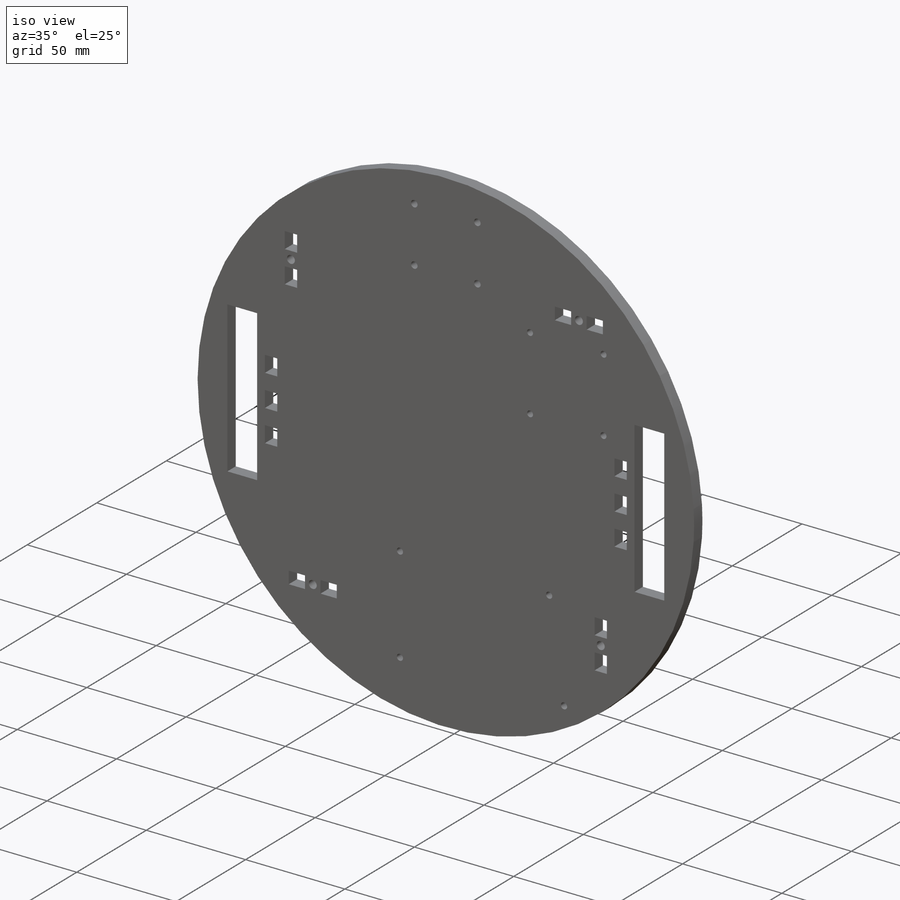
[diagram: iso view]
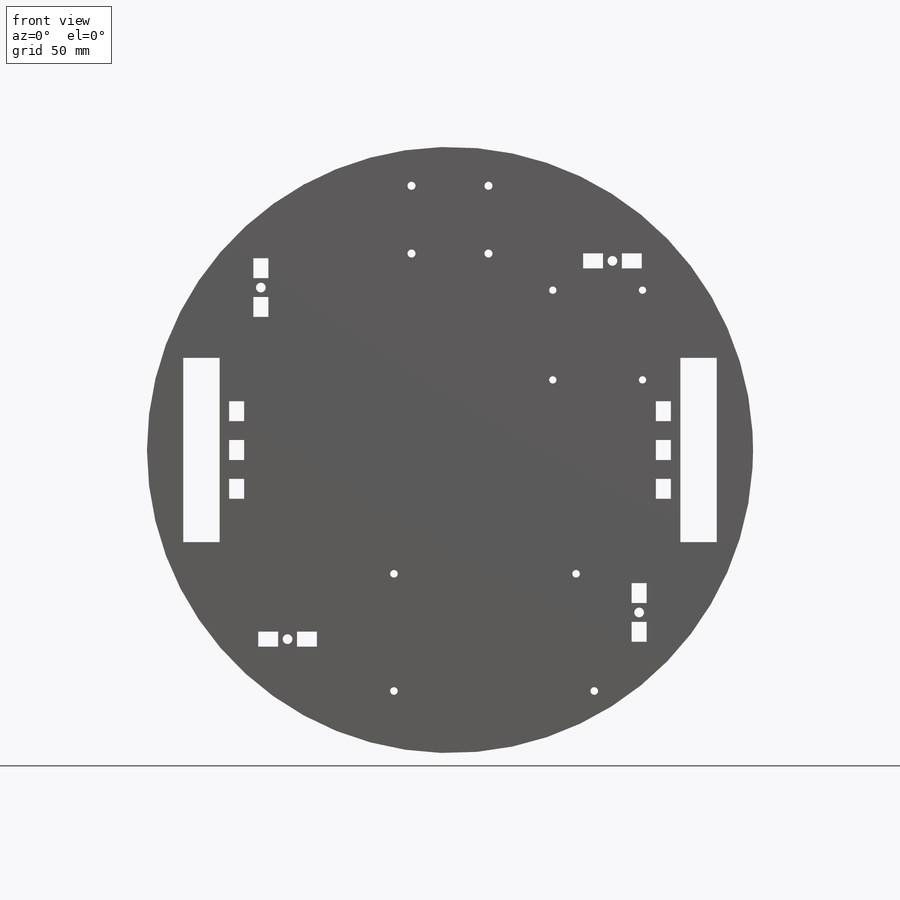
[diagram: front view]
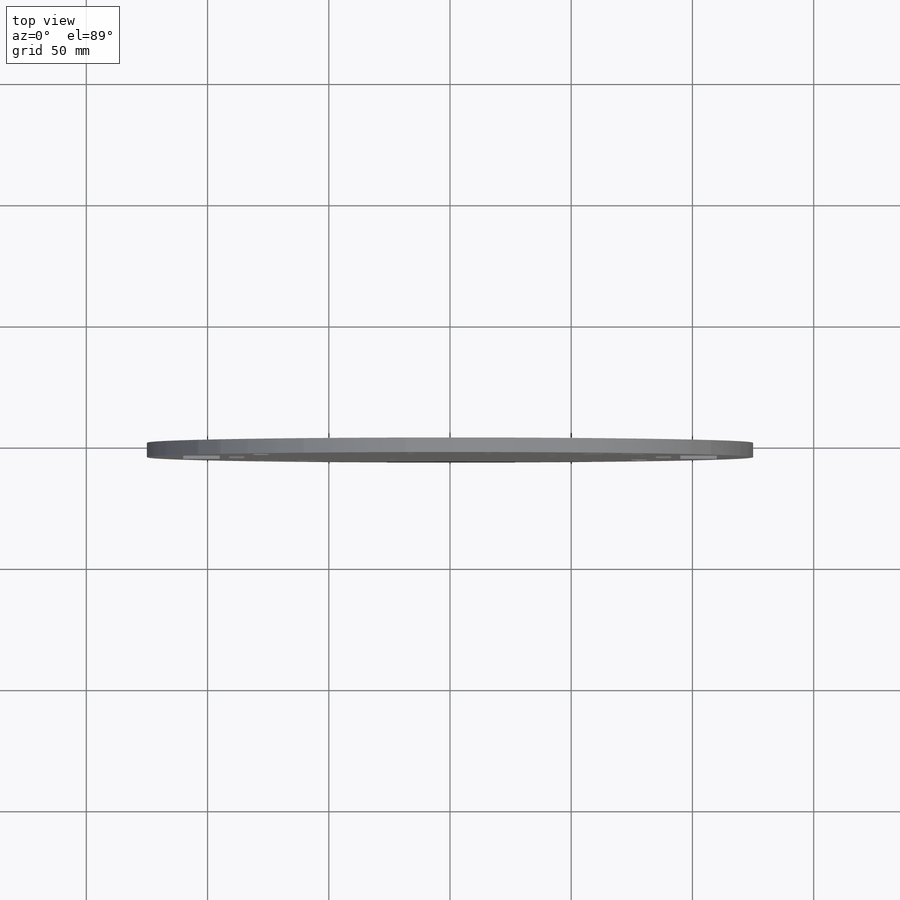
[diagram: top view]
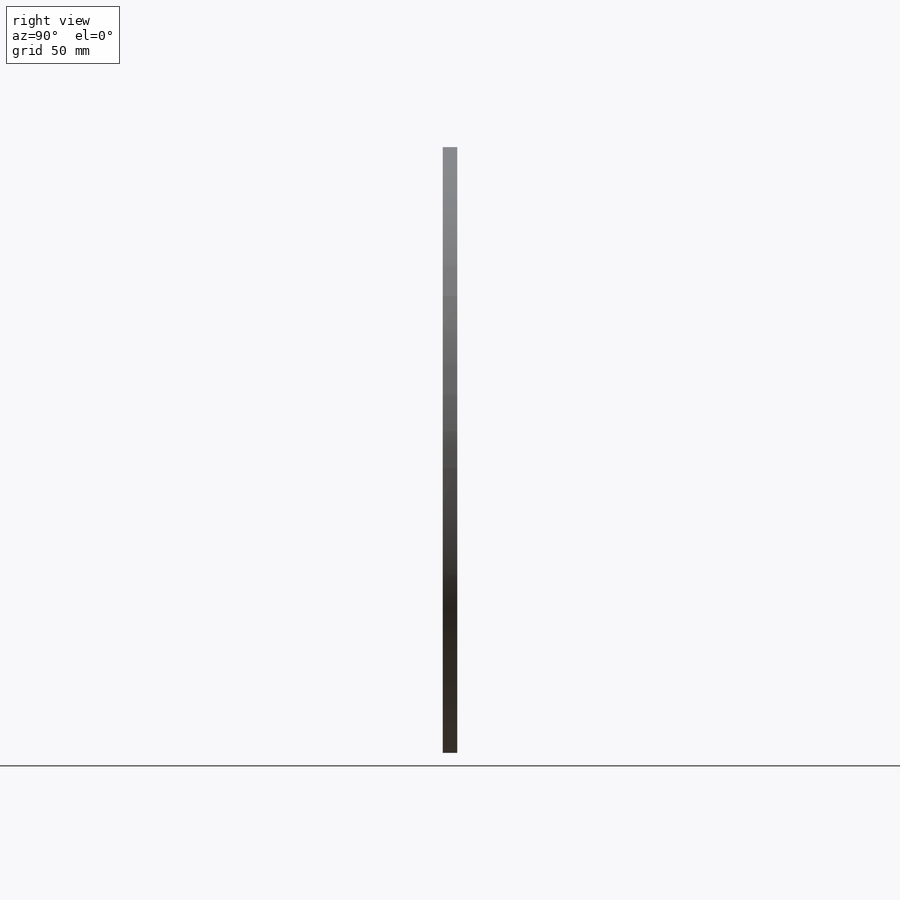
[diagram: right view]
SOLIDWORKS PART (.sldprt)
format: sldprt  version: not decoded by parser v0  size: 620,032 bytes
history: native  units: mm
features: sketch x7, cut_extrude x6, plane x3, pattern_circular x2, material x1, extrude x1, mirror x1 (+10 scaffold rows collapsed)
feature tree (31):
  scaffold x10  (default folders/planes/origin — collapsed)
  material  "Matériau <non spécifié>"
  plane  "Plan de face"
  plane  "Plan de dessus"
  plane  "Plan de droite"
  sketch  "Esquisse1"  dims[D1=~157.679775mm D2=~50.957674mm]
  extrude  "Boss.-Extru.1"  Depth=6mm
  sketch  "Esquisse2"  dims[D1=38.0mm D2=38.0mm D3=15.0mm D4=95.0mm]
  cut_extrude  "Enlèv. mat.-Extru.1"  [1 undecoded]
  mirror  "Symétrie1"
  sketch  "Esquisse3"  dims[c1.D6=4.0mm c1.D1=~6.541901mm c1.D2=~10.903168mm c2.D1=8.2mm c2.D2=6.0mm c2.D3=5.0mm c2.D4=~9.44522mm c3.D3=6.2mm c3.D4=8.2mm c3.D5=8.0mm c3.D6=~4.560861mm c3.D7=55.0mm c3.D8=75.0mm c4.D7=67.0mm c4.D8=78.0mm c4.D2=8.0mm c4.D5=8.0mm]
  cut_extrude  "Enlèv. mat.-Extru.2"  [1 undecoded]
  pattern_circular  "Répétition circulaire1"  Count=4 Angle=90deg
  sketch  "Esquisse4"  dims[c1.D1=~57.489435mm c1.D2=~11.072039mm c2.D1=5.0mm c2.D2=6.2mm c2.D3=40.0mm c2.D4=20.0mm c2.D5=8.2mm c2.D6=8.2mm c2.D7=4.0mm c2.D8=8.2mm c3.D1=7.0mm c3.D3=16.0mm c3.D4=16.0mm c3.D7=4.0mm]
  cut_extrude  "Enlèv. mat.-Extru.3"  [1 undecoded]
  pattern_circular  "Symétrie2"  [2 undecoded]
  sketch  "Esquisse7"
  cut_extrude  "Enlèv. mat.-Extru.6"  Depth=6mm
  sketch  "Esquisse8"
  cut_extrude  "Enlèv. mat.-Extru.7"  Depth=10mm
  sketch  "Esquisse9"  dims[c1.D3=3.3mm c1.D4=3.3mm c1.D5=3.3mm c1.D6=3.3mm c1.D8=3.1242mm c1.D1=31.75mm c1.D2=27.94mm c1.D7=30.0mm c2.D8=~132.088374mm]
  cut_extrude  "Enlèv. mat.-Extru.8"  [1 undecoded]
decode coverage: 9 of 17 modeling features carry decoded parameters
note: ~ marks probable driven/reference dimensions
note: 6 parameter values undecoded
summary: no parameter record found for 4 features
note: suppression state not decoded; provenance and decode notes live in map.json
